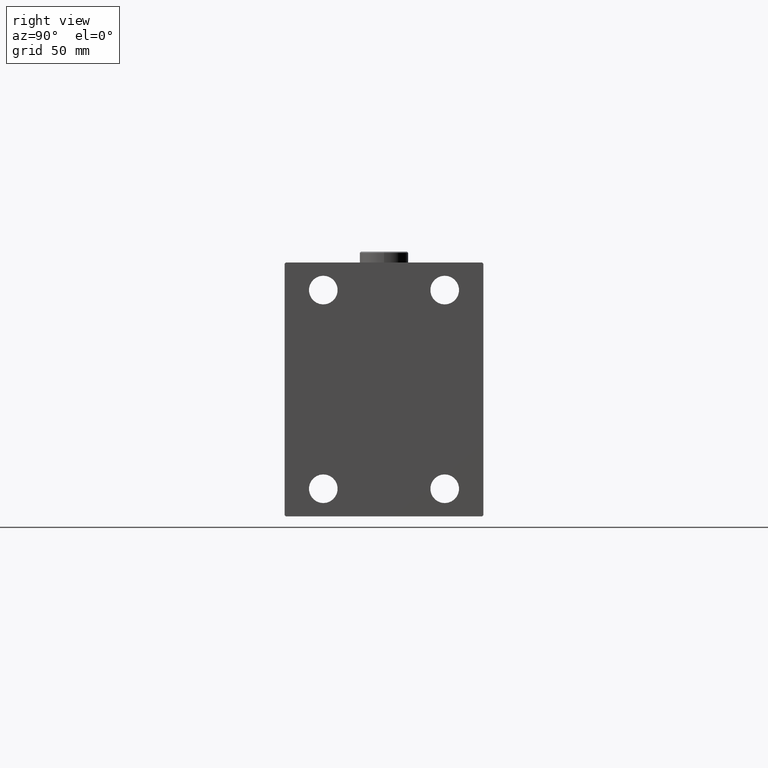
[diagram: clean part render]
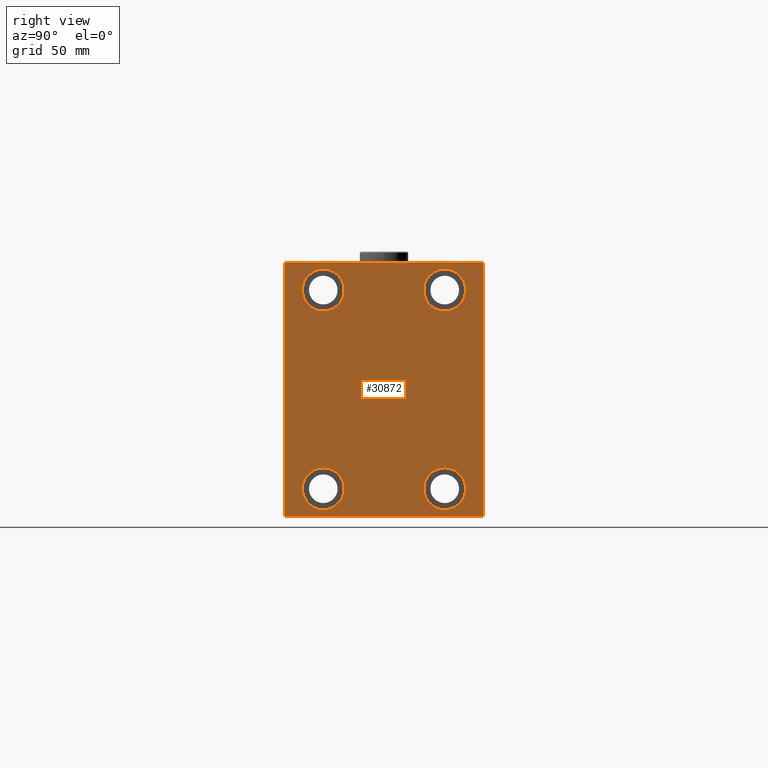
[diagram: same view with one face highlighted and labeled with its STEP entity id]
A machine part, right view. The second image highlights one B-rep face of the part: STEP entity #30872.
In plain terms, the highlighted planar face has unit normal (1, 0, 0).
Its self-contained STEP definition (entity closure, byte-faithful):
#453 = VERTEX_POINT ( 'NONE', #46821 ) ;
#796 = DIRECTION ( 'NONE',  ( 1.000000000000000000, 0.000000000000000000, 0.000000000000000000 ) ) ;
#877 = DIRECTION ( 'NONE',  ( -1.000000000000000000, -0.000000000000000000, -0.000000000000000000 ) ) ;
#1290 = PLANE ( 'NONE',  #36966 ) ;
#1660 = VECTOR ( 'NONE', #17152, 1000.000000000000000 ) ;
#1748 = CARTESIAN_POINT ( 'NONE',  ( 198.0000000000000000, 27.50000000000001066, 45.00000000000000711 ) ) ;
#1971 = CARTESIAN_POINT ( 'NONE',  ( 198.0000000000000000, 51.00000000000127187, -50.99999999999844391 ) ) ;
#2062 = EDGE_CURVE ( 'NONE', #30325, #453, #8185, .T. ) ;
#2084 = ORIENTED_EDGE ( 'NONE', *, *, #32490, .T. ) ;
#2234 = VERTEX_POINT ( 'NONE', #5979 ) ;
#2366 = AXIS2_PLACEMENT_3D ( 'NONE', #1748, #31477, #41924 ) ;
#3994 = VERTEX_POINT ( 'NONE', #30814 ) ;
#4140 = CARTESIAN_POINT ( 'NONE',  ( 198.0000000000000000, 27.49999999999998934, -54.49999999999998579 ) ) ;
#4214 = FACE_BOUND ( 'NONE', #44028, .T. ) ;
#4698 = CARTESIAN_POINT ( 'NONE',  ( 198.0000000000000000, 0.000000000000000000, 0.000000000000000000 ) ) ;
#4897 = EDGE_CURVE ( 'NONE', #5773, #43450, #8489, .T. ) ;
#5773 = VERTEX_POINT ( 'NONE', #43827 ) ;
#5979 = CARTESIAN_POINT ( 'NONE',  ( 198.0000000000000000, -27.49999999999998934, 54.50000000000000711 ) ) ;
#6507 = CARTESIAN_POINT ( 'NONE',  ( 198.0000000000000000, 45.00000000000001421, -57.00000000000003553 ) ) ;
#6571 = EDGE_CURVE ( 'NONE', #47071, #24743, #9529, .T. ) ;
#7278 = CIRCLE ( 'NONE', #25955, 9.500000000000001776 ) ;
#7551 = EDGE_CURVE ( 'NONE', #2234, #45565, #25654, .T. ) ;
#7808 = CARTESIAN_POINT ( 'NONE',  ( 198.0000000000000000, -45.00000000000000000, -57.00000000000006395 ) ) ;
#8149 = EDGE_CURVE ( 'NONE', #16304, #27207, #36075, .T. ) ;
#8185 = LINE ( 'NONE', #15751, #15402 ) ;
#8489 = CIRCLE ( 'NONE', #17854, 9.500000000000001776 ) ;
#8954 = EDGE_CURVE ( 'NONE', #16654, #20649, #22606, .T. ) ;
#9217 = CARTESIAN_POINT ( 'NONE',  ( 198.0000000000000000, 27.49999999999998934, -44.99999999999998579 ) ) ;
#9355 = CARTESIAN_POINT ( 'NONE',  ( 198.0000000000000000, -27.50000000000000000, -54.49999999999998579 ) ) ;
#9529 = LINE ( 'NONE', #19768, #26432 ) ;
#10263 = DIRECTION ( 'NONE',  ( -0.000000000000000000, 0.7071067811865671127, -0.7071067811865279218 ) ) ;
#11045 = VERTEX_POINT ( 'NONE', #7808 ) ;
#11092 = VECTOR ( 'NONE', #46020, 1000.000000000000000 ) ;
#11946 = EDGE_CURVE ( 'NONE', #3994, #37567, #24939, .T. ) ;
#12402 = ORIENTED_EDGE ( 'NONE', *, *, #27141, .T. ) ;
#12416 = CARTESIAN_POINT ( 'NONE',  ( 198.0000000000000000, 45.00000000000001421, -57.50000000000000711 ) ) ;
#12466 = DIRECTION ( 'NONE',  ( -1.000000000000000000, -0.000000000000000000, -0.000000000000000000 ) ) ;
#12543 = CIRCLE ( 'NONE', #39764, 9.500000000000001776 ) ;
#12918 = VECTOR ( 'NONE', #35328, 1000.000000000000000 ) ;
#12927 = DIRECTION ( 'NONE',  ( 0.000000000000000000, 0.000000000000000000, 1.000000000000000000 ) ) ;
#13487 = CARTESIAN_POINT ( 'NONE',  ( 198.0000000000000000, 45.00000000000000000, 57.50000000000000711 ) ) ;
#15402 = VECTOR ( 'NONE', #26227, 1000.000000000000000 ) ;
#15751 = CARTESIAN_POINT ( 'NONE',  ( 198.0000000000000000, -50.99999999999877787, 51.00000000000160583 ) ) ;
#16304 = VERTEX_POINT ( 'NONE', #22527 ) ;
#16499 = CARTESIAN_POINT ( 'NONE',  ( 198.0000000000000000, 44.50000000000002842, 57.50000000000000711 ) ) ;
#16654 = VERTEX_POINT ( 'NONE', #24694 ) ;
#16869 = CARTESIAN_POINT ( 'NONE',  ( 198.0000000000000000, -50.99999999999877787, -51.00000000000160583 ) ) ;
#16936 = EDGE_CURVE ( 'NONE', #11045, #45730, #35607, .T. ) ;
#17152 = DIRECTION ( 'NONE',  ( 0.000000000000000000, -1.000000000000000000, -1.541976423090495387E-16 ) ) ;
#17833 = EDGE_CURVE ( 'NONE', #453, #11045, #42129, .T. ) ;
#17854 = AXIS2_PLACEMENT_3D ( 'NONE', #9217, #31392, #24072 ) ;
#19667 = EDGE_LOOP ( 'NONE', ( #12402, #21958 ) ) ;
#19751 = CARTESIAN_POINT ( 'NONE',  ( 198.0000000000000000, -45.00000000000000000, -57.50000000000000711 ) ) ;
#19768 = CARTESIAN_POINT ( 'NONE',  ( 198.0000000000000000, 50.99999999999877787, 51.00000000000160583 ) ) ;
#19821 = FACE_BOUND ( 'NONE', #36614, .T. ) ;
#20189 = CARTESIAN_POINT ( 'NONE',  ( 198.0000000000000000, -27.50000000000000000, -44.99999999999998579 ) ) ;
#20485 = LINE ( 'NONE', #12416, #12918 ) ;
#20649 = VERTEX_POINT ( 'NONE', #42882 ) ;
#20988 = EDGE_CURVE ( 'NONE', #24743, #30325, #31534, .T. ) ;
#21900 = CARTESIAN_POINT ( 'NONE',  ( 198.0000000000000000, -44.50000000000000000, 57.49999999999999289 ) ) ;
#21958 = ORIENTED_EDGE ( 'NONE', *, *, #11946, .T. ) ;
#22527 = CARTESIAN_POINT ( 'NONE',  ( 198.0000000000000000, 44.50000000000004263, -57.50000000000000711 ) ) ;
#22606 = CIRCLE ( 'NONE', #2366, 9.500000000000001776 ) ;
#22701 = EDGE_LOOP ( 'NONE', ( #27060, #35472, #32550, #29846, #43880, #42078, #26029, #35035 ) ) ;
#23362 = ORIENTED_EDGE ( 'NONE', *, *, #37247, .T. ) ;
#24072 = DIRECTION ( 'NONE',  ( 0.000000000000000000, 0.000000000000000000, 1.000000000000000000 ) ) ;
#24694 = CARTESIAN_POINT ( 'NONE',  ( 198.0000000000000000, 27.50000000000001066, 54.50000000000000711 ) ) ;
#24743 = VERTEX_POINT ( 'NONE', #16499 ) ;
#24939 = CIRCLE ( 'NONE', #34259, 9.500000000000001776 ) ;
#25031 = DIRECTION ( 'NONE',  ( 0.000000000000000000, 0.000000000000000000, 1.000000000000000000 ) ) ;
#25251 = ORIENTED_EDGE ( 'NONE', *, *, #4897, .T. ) ;
#25654 = CIRCLE ( 'NONE', #38109, 9.500000000000001776 ) ;
#25955 = AXIS2_PLACEMENT_3D ( 'NONE', #20189, #35038, #45728 ) ;
#26029 = ORIENTED_EDGE ( 'NONE', *, *, #36691, .T. ) ;
#26227 = DIRECTION ( 'NONE',  ( 0.000000000000000000, -0.7071067811865671127, -0.7071067811865279218 ) ) ;
#26388 = FACE_OUTER_BOUND ( 'NONE', #22701, .T. ) ;
#26432 = VECTOR ( 'NONE', #35112, 1000.000000000000000 ) ;
#26749 = EDGE_CURVE ( 'NONE', #45730, #16304, #37092, .T. ) ;
#26790 = CARTESIAN_POINT ( 'NONE',  ( 198.0000000000000000, -45.00000000000000000, 57.49999999999999289 ) ) ;
#27060 = ORIENTED_EDGE ( 'NONE', *, *, #20988, .T. ) ;
#27141 = EDGE_CURVE ( 'NONE', #37567, #3994, #7278, .T. ) ;
#27207 = VERTEX_POINT ( 'NONE', #6507 ) ;
#27368 = FACE_BOUND ( 'NONE', #47797, .T. ) ;
#27502 = DIRECTION ( 'NONE',  ( 0.000000000000000000, 0.000000000000000000, 1.000000000000000000 ) ) ;
#27687 = DIRECTION ( 'NONE',  ( 0.000000000000000000, 0.000000000000000000, 1.000000000000000000 ) ) ;
#28035 = DIRECTION ( 'NONE',  ( -1.000000000000000000, -0.000000000000000000, -0.000000000000000000 ) ) ;
#28297 = DIRECTION ( 'NONE',  ( 0.000000000000000000, 0.000000000000000000, 1.000000000000000000 ) ) ;
#28479 = CIRCLE ( 'NONE', #43987, 9.500000000000001776 ) ;
#28693 = CARTESIAN_POINT ( 'NONE',  ( 198.0000000000000000, 27.49999999999998934, -44.99999999999998579 ) ) ;
#29846 = ORIENTED_EDGE ( 'NONE', *, *, #16936, .T. ) ;
#30325 = VERTEX_POINT ( 'NONE', #21900 ) ;
#30814 = CARTESIAN_POINT ( 'NONE',  ( 198.0000000000000000, -27.50000000000000000, -35.49999999999998579 ) ) ;
#30872 = ADVANCED_FACE ( 'NONE', ( #4214, #19821, #27368, #34679, #26388 ), #1290, .T. ) ;
#30996 = CARTESIAN_POINT ( 'NONE',  ( 198.0000000000000000, 27.50000000000001066, 45.00000000000000711 ) ) ;
#31355 = CARTESIAN_POINT ( 'NONE',  ( 198.0000000000000000, -27.49999999999998934, 45.00000000000000711 ) ) ;
#31392 = DIRECTION ( 'NONE',  ( -1.000000000000000000, -0.000000000000000000, -0.000000000000000000 ) ) ;
#31477 = DIRECTION ( 'NONE',  ( -1.000000000000000000, -0.000000000000000000, -0.000000000000000000 ) ) ;
#31534 = LINE ( 'NONE', #13487, #1660 ) ;
#31765 = ORIENTED_EDGE ( 'NONE', *, *, #47718, .T. ) ;
#32490 = EDGE_CURVE ( 'NONE', #43450, #5773, #28479, .T. ) ;
#32550 = ORIENTED_EDGE ( 'NONE', *, *, #17833, .T. ) ;
#32735 = VECTOR ( 'NONE', #46778, 1000.000000000000000 ) ;
#33324 = ORIENTED_EDGE ( 'NONE', *, *, #7551, .T. ) ;
#34259 = AXIS2_PLACEMENT_3D ( 'NONE', #46048, #28035, #12927 ) ;
#34679 = FACE_BOUND ( 'NONE', #19667, .T. ) ;
#35035 = ORIENTED_EDGE ( 'NONE', *, *, #6571, .T. ) ;
#35038 = DIRECTION ( 'NONE',  ( -1.000000000000000000, -0.000000000000000000, -0.000000000000000000 ) ) ;
#35057 = DIRECTION ( 'NONE',  ( -1.000000000000000000, -0.000000000000000000, -0.000000000000000000 ) ) ;
#35112 = DIRECTION ( 'NONE',  ( -0.000000000000000000, -0.7071067811865671127, 0.7071067811865279218 ) ) ;
#35328 = DIRECTION ( 'NONE',  ( 0.000000000000000000, -1.206764157201257045E-16, 1.000000000000000000 ) ) ;
#35472 = ORIENTED_EDGE ( 'NONE', *, *, #2062, .T. ) ;
#35607 = LINE ( 'NONE', #16869, #45256 ) ;
#35823 = CARTESIAN_POINT ( 'NONE',  ( 198.0000000000000000, -44.50000000000002842, -57.50000000000000711 ) ) ;
#36075 = LINE ( 'NONE', #1971, #32735 ) ;
#36614 = EDGE_LOOP ( 'NONE', ( #23362, #33324 ) ) ;
#36617 = DIRECTION ( 'NONE',  ( 0.000000000000000000, 1.000000000000000000, 0.000000000000000000 ) ) ;
#36691 = EDGE_CURVE ( 'NONE', #27207, #47071, #20485, .T. ) ;
#36966 = AXIS2_PLACEMENT_3D ( 'NONE', #4698, #796, #37824 ) ;
#37092 = LINE ( 'NONE', #19751, #44613 ) ;
#37247 = EDGE_CURVE ( 'NONE', #45565, #2234, #44778, .T. ) ;
#37567 = VERTEX_POINT ( 'NONE', #9355 ) ;
#37824 = DIRECTION ( 'NONE',  ( 0.000000000000000000, 0.000000000000000000, -1.000000000000000000 ) ) ;
#38109 = AXIS2_PLACEMENT_3D ( 'NONE', #31355, #877, #27687 ) ;
#39764 = AXIS2_PLACEMENT_3D ( 'NONE', #30996, #12466, #28297 ) ;
#41562 = CARTESIAN_POINT ( 'NONE',  ( 198.0000000000000000, 45.00000000000000000, 57.00000000000003553 ) ) ;
#41690 = AXIS2_PLACEMENT_3D ( 'NONE', #46241, #35057, #27502 ) ;
#41924 = DIRECTION ( 'NONE',  ( 0.000000000000000000, 0.000000000000000000, 1.000000000000000000 ) ) ;
#42078 = ORIENTED_EDGE ( 'NONE', *, *, #8149, .T. ) ;
#42129 = LINE ( 'NONE', #26790, #11092 ) ;
#42882 = CARTESIAN_POINT ( 'NONE',  ( 198.0000000000000000, 27.50000000000001066, 35.50000000000000711 ) ) ;
#43145 = ORIENTED_EDGE ( 'NONE', *, *, #8954, .T. ) ;
#43450 = VERTEX_POINT ( 'NONE', #4140 ) ;
#43827 = CARTESIAN_POINT ( 'NONE',  ( 198.0000000000000000, 27.49999999999998934, -35.49999999999998579 ) ) ;
#43880 = ORIENTED_EDGE ( 'NONE', *, *, #26749, .T. ) ;
#43987 = AXIS2_PLACEMENT_3D ( 'NONE', #28693, #47175, #25031 ) ;
#44028 = EDGE_LOOP ( 'NONE', ( #2084, #25251 ) ) ;
#44613 = VECTOR ( 'NONE', #36617, 1000.000000000000000 ) ;
#44778 = CIRCLE ( 'NONE', #41690, 9.500000000000001776 ) ;
#44836 = CARTESIAN_POINT ( 'NONE',  ( 198.0000000000000000, -27.49999999999998934, 35.50000000000000711 ) ) ;
#45256 = VECTOR ( 'NONE', #10263, 1000.000000000000000 ) ;
#45565 = VERTEX_POINT ( 'NONE', #44836 ) ;
#45728 = DIRECTION ( 'NONE',  ( 0.000000000000000000, 0.000000000000000000, 1.000000000000000000 ) ) ;
#45730 = VERTEX_POINT ( 'NONE', #35823 ) ;
#46020 = DIRECTION ( 'NONE',  ( 0.000000000000000000, 0.000000000000000000, -1.000000000000000000 ) ) ;
#46048 = CARTESIAN_POINT ( 'NONE',  ( 198.0000000000000000, -27.50000000000000000, -44.99999999999998579 ) ) ;
#46241 = CARTESIAN_POINT ( 'NONE',  ( 198.0000000000000000, -27.49999999999998934, 45.00000000000000711 ) ) ;
#46778 = DIRECTION ( 'NONE',  ( -0.000000000000000000, 0.7071067811865279218, 0.7071067811865671127 ) ) ;
#46821 = CARTESIAN_POINT ( 'NONE',  ( 198.0000000000000000, -45.00000000000000000, 57.00000000000004974 ) ) ;
#47071 = VERTEX_POINT ( 'NONE', #41562 ) ;
#47175 = DIRECTION ( 'NONE',  ( -1.000000000000000000, -0.000000000000000000, -0.000000000000000000 ) ) ;
#47718 = EDGE_CURVE ( 'NONE', #20649, #16654, #12543, .T. ) ;
#47797 = EDGE_LOOP ( 'NONE', ( #31765, #43145 ) ) ;